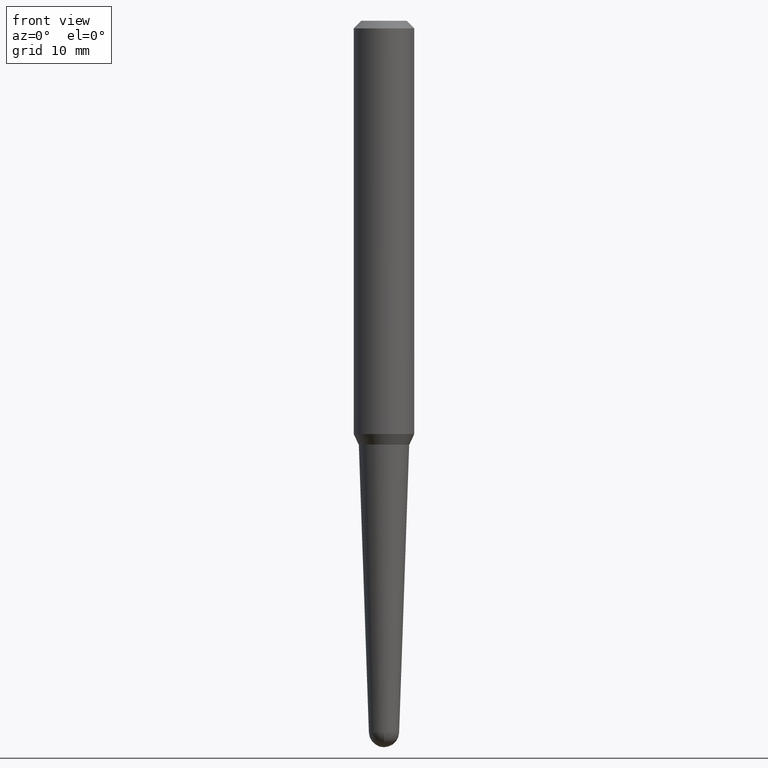
[diagram: clean part render]
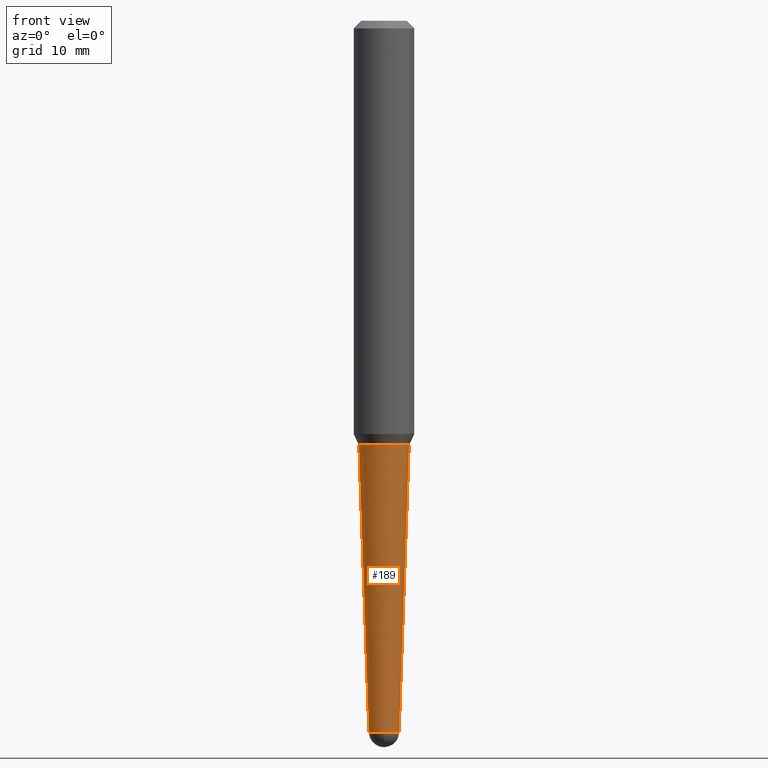
[diagram: same view with one face highlighted and labeled with its STEP entity id]
A machine part, front view. The second image highlights one B-rep face of the part: STEP entity #189.
In plain terms, the highlighted conical surface has half-angle 2 deg.
Its self-contained STEP definition (entity closure, byte-faithful):
#2 = AXIS2_PLACEMENT_3D ( 'NONE', #399, #81, #372 ) ;
#17 = AXIS2_PLACEMENT_3D ( 'NONE', #268, #420, #384 ) ;
#22 = VERTEX_POINT ( 'NONE', #391 ) ;
#43 = ORIENTED_EDGE ( 'NONE', *, *, #103, .T. ) ;
#66 = VERTEX_POINT ( 'NONE', #456 ) ;
#81 = DIRECTION ( 'NONE',  ( -2.445468806185136597E-29, 3.491481338843145583E-15, 1.000000000000000000 ) ) ;
#103 = EDGE_CURVE ( 'NONE', #66, #22, #322, .T. ) ;
#106 = EDGE_LOOP ( 'NONE', ( #283, #320, #412, #43, #312 ) ) ;
#111 = EDGE_CURVE ( 'NONE', #348, #421, #180, .T. ) ;
#142 = DIRECTION ( 'NONE',  ( -0.03489949670250091368, 3.737330261384646804E-15, 0.9993908270190957621 ) ) ;
#143 = CARTESIAN_POINT ( 'NONE',  ( -0.1040065102901272243, -5.371081639391425565E-15, -1.750000000000000222 ) ) ;
#147 = CIRCLE ( 'NONE', #325, 0.06246192668869397779 ) ;
#165 = DIRECTION ( 'NONE',  ( 1.000000000000000000, -6.982962677686261977E-15, 0.000000000000000000 ) ) ;
#169 = CONICAL_SURFACE ( 'NONE', #2, 0.06246192668869397779, 0.03490658503988653544 ) ;
#176 = VECTOR ( 'NONE', #142, 39.37007874015748143 ) ;
#180 = LINE ( 'NONE', #460, #176 ) ;
#189 = ADVANCED_FACE ( 'NONE', ( #249 ), #169, .T. ) ;
#242 = AXIS2_PLACEMENT_3D ( 'NONE', #451, #454, #165 ) ;
#249 = FACE_OUTER_BOUND ( 'NONE', #106, .T. ) ;
#268 = CARTESIAN_POINT ( 'NONE',  ( 4.279570410823989044E-29, -6.110092342975505460E-15, -1.750000000000000222 ) ) ;
#283 = ORIENTED_EDGE ( 'NONE', *, *, #111, .F. ) ;
#299 = EDGE_CURVE ( 'NONE', #357, #66, #453, .T. ) ;
#312 = ORIENTED_EDGE ( 'NONE', *, *, #381, .F. ) ;
#320 = ORIENTED_EDGE ( 'NONE', *, *, #461, .T. ) ;
#321 = DIRECTION ( 'NONE',  ( 1.000000000000000000, -6.982962677686261977E-15, 0.000000000000000000 ) ) ;
#322 = LINE ( 'NONE', #354, #375 ) ;
#325 = AXIS2_PLACEMENT_3D ( 'NONE', #443, #430, #321 ) ;
#348 = VERTEX_POINT ( 'NONE', #452 ) ;
#354 = CARTESIAN_POINT ( 'NONE',  ( 0.06246192668869397779, -1.070001141953725324E-14, -2.939681218543906294 ) ) ;
#357 = VERTEX_POINT ( 'NONE', #449 ) ;
#372 = DIRECTION ( 'NONE',  ( 1.000000000000000000, -6.982962677686261977E-15, 0.000000000000000000 ) ) ;
#375 = VECTOR ( 'NONE', #459, 39.37007874015748143 ) ;
#381 = EDGE_CURVE ( 'NONE', #421, #22, #439, .T. ) ;
#384 = DIRECTION ( 'NONE',  ( 1.000000000000000000, -6.982962677686269077E-15, 0.000000000000000000 ) ) ;
#391 = CARTESIAN_POINT ( 'NONE',  ( 0.1040065102901272243, -6.836365922567855288E-15, -1.750000000000000222 ) ) ;
#399 = CARTESIAN_POINT ( 'NONE',  ( 7.188898720077434965E-29, -1.026384211669372732E-14, -2.939681218543906294 ) ) ;
#412 = ORIENTED_EDGE ( 'NONE', *, *, #299, .T. ) ;
#420 = DIRECTION ( 'NONE',  ( -2.445468806185136597E-29, 3.491481338843145583E-15, 1.000000000000000000 ) ) ;
#421 = VERTEX_POINT ( 'NONE', #143 ) ;
#430 = DIRECTION ( 'NONE',  ( -2.445468806185136597E-29, 3.491481338843145583E-15, 1.000000000000000000 ) ) ;
#439 = CIRCLE ( 'NONE', #17, 0.1040065102901272243 ) ;
#443 = CARTESIAN_POINT ( 'NONE',  ( 7.188898720077434965E-29, -1.026384211669372732E-14, -2.939681218543906294 ) ) ;
#449 = CARTESIAN_POINT ( 'NONE',  ( -4.438186827022384186E-16, -0.06246192668870367837, -2.939681218543906294 ) ) ;
#451 = CARTESIAN_POINT ( 'NONE',  ( 7.188898720077434965E-29, -1.026384211669372732E-14, -2.939681218543906294 ) ) ;
#452 = CARTESIAN_POINT ( 'NONE',  ( -0.06246192668869397779, -7.595552536691419221E-15, -2.939681218543906294 ) ) ;
#453 = CIRCLE ( 'NONE', #242, 0.06246192668869397779 ) ;
#454 = DIRECTION ( 'NONE',  ( -2.445468806185136597E-29, 3.491481338843145583E-15, 1.000000000000000000 ) ) ;
#456 = CARTESIAN_POINT ( 'NONE',  ( 0.06246192668869397779, -8.768188671052554661E-15, -2.939681218543906294 ) ) ;
#459 = DIRECTION ( 'NONE',  ( 0.03489949670250091368, 3.245652539804591788E-15, 0.9993908270190957621 ) ) ;
#460 = CARTESIAN_POINT ( 'NONE',  ( -0.06246192668869397779, -9.820023433991413666E-15, -2.939681218543906294 ) ) ;
#461 = EDGE_CURVE ( 'NONE', #348, #357, #147, .T. ) ;